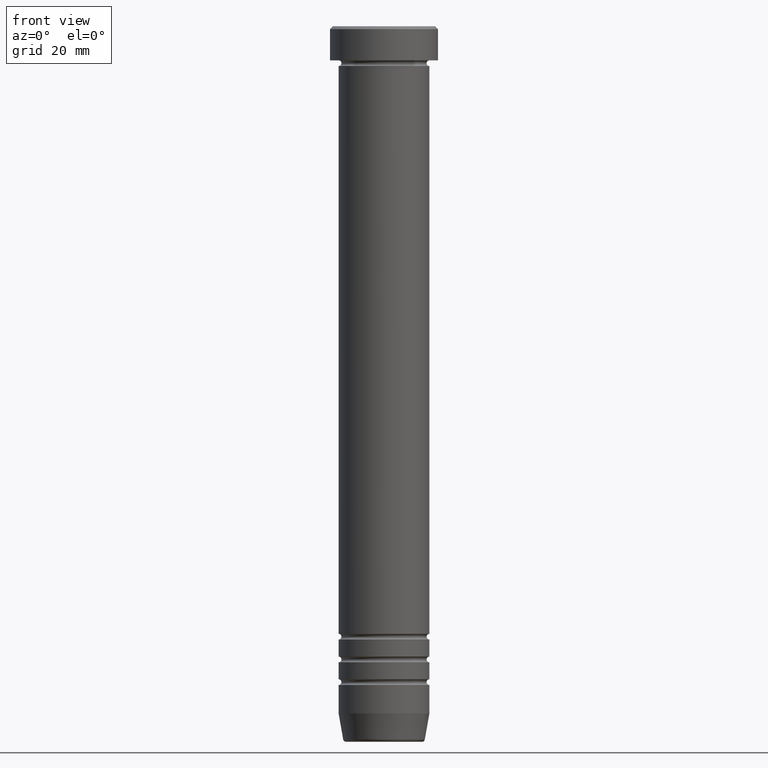
[diagram: clean part render]
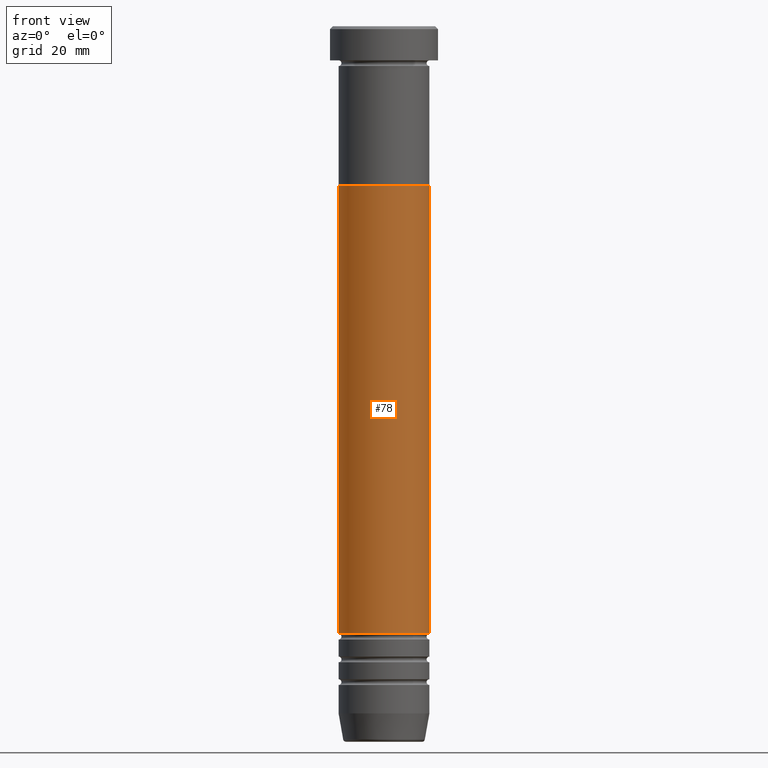
[diagram: same view with one face highlighted and labeled with its STEP entity id]
A machine part, front view. The second image highlights one B-rep face of the part: STEP entity #78.
In plain terms, the highlighted cylindrical surface (partial cylindrical patch) has radius 8 mm, axis along (-0, -0, 1).
Its self-contained STEP definition (entity closure, byte-faithful):
#9 = CARTESIAN_POINT ( 'NONE',  ( 7.999999999999991118, 0.000000000000000000, -107.0000000000000142 ) ) ;
#15 = CARTESIAN_POINT ( 'NONE',  ( 0.000000000000000000, 0.000000000000000000, -28.00000000000000000 ) ) ;
#64 = EDGE_CURVE ( 'NONE', #579, #902, #163, .T. ) ;
#78 = ADVANCED_FACE ( 'NONE', ( #438 ), #996, .T. ) ;
#107 = DIRECTION ( 'NONE',  ( -0.000000000000000000, -0.000000000000000000, 1.000000000000000000 ) ) ;
#112 = DIRECTION ( 'NONE',  ( 1.000000000000000000, 0.000000000000000000, 0.000000000000000000 ) ) ;
#118 = DIRECTION ( 'NONE',  ( 1.000000000000000000, 0.000000000000000000, 0.000000000000000000 ) ) ;
#125 = EDGE_CURVE ( 'NONE', #510, #579, #925, .T. ) ;
#146 = VERTEX_POINT ( 'NONE', #945 ) ;
#163 = LINE ( 'NONE', #506, #467 ) ;
#192 = ORIENTED_EDGE ( 'NONE', *, *, #125, .T. ) ;
#198 = CARTESIAN_POINT ( 'NONE',  ( 0.000000000000000000, 0.000000000000000000, 0.000000000000000000 ) ) ;
#237 = DIRECTION ( 'NONE',  ( 1.000000000000000000, 0.000000000000000000, 0.000000000000000000 ) ) ;
#290 = CARTESIAN_POINT ( 'NONE',  ( 8.000000000000000000, 0.000000000000000000, -28.00000000000000000 ) ) ;
#330 = EDGE_CURVE ( 'NONE', #510, #146, #977, .T. ) ;
#406 = DIRECTION ( 'NONE',  ( -0.000000000000000000, -0.000000000000000000, 1.000000000000000000 ) ) ;
#431 = DIRECTION ( 'NONE',  ( -0.000000000000000000, -0.000000000000000000, 1.000000000000000000 ) ) ;
#435 = AXIS2_PLACEMENT_3D ( 'NONE', #15, #107, #112 ) ;
#438 = FACE_OUTER_BOUND ( 'NONE', #875, .T. ) ;
#467 = VECTOR ( 'NONE', #431, 1000.000000000000000 ) ;
#506 = CARTESIAN_POINT ( 'NONE',  ( 7.999999999999996447, 0.000000000000000000, 0.000000000000000000 ) ) ;
#510 = VERTEX_POINT ( 'NONE', #1015 ) ;
#546 = DIRECTION ( 'NONE',  ( -0.000000000000000000, -0.000000000000000000, 1.000000000000000000 ) ) ;
#579 = VERTEX_POINT ( 'NONE', #9 ) ;
#594 = CARTESIAN_POINT ( 'NONE',  ( -7.999999999999996447, 9.797174393178821713E-16, 0.000000000000000000 ) ) ;
#603 = AXIS2_PLACEMENT_3D ( 'NONE', #198, #546, #118 ) ;
#771 = ORIENTED_EDGE ( 'NONE', *, *, #871, .F. ) ;
#838 = VECTOR ( 'NONE', #1050, 1000.000000000000000 ) ;
#851 = CARTESIAN_POINT ( 'NONE',  ( 0.000000000000000000, 0.000000000000000000, -107.0000000000000142 ) ) ;
#871 = EDGE_CURVE ( 'NONE', #146, #902, #1123, .T. ) ;
#875 = EDGE_LOOP ( 'NONE', ( #1143, #192, #1117, #771 ) ) ;
#902 = VERTEX_POINT ( 'NONE', #290 ) ;
#925 = CIRCLE ( 'NONE', #1142, 7.999999999999991118 ) ;
#945 = CARTESIAN_POINT ( 'NONE',  ( -8.000000000000000000, 9.797174393178825657E-16, -28.00000000000000000 ) ) ;
#977 = LINE ( 'NONE', #594, #838 ) ;
#996 = CYLINDRICAL_SURFACE ( 'NONE', #603, 7.999999999999996447 ) ;
#1015 = CARTESIAN_POINT ( 'NONE',  ( -7.999999999999991118, 9.797174393178819741E-16, -107.0000000000000142 ) ) ;
#1050 = DIRECTION ( 'NONE',  ( -0.000000000000000000, -0.000000000000000000, 1.000000000000000000 ) ) ;
#1117 = ORIENTED_EDGE ( 'NONE', *, *, #64, .T. ) ;
#1123 = CIRCLE ( 'NONE', #435, 8.000000000000000000 ) ;
#1142 = AXIS2_PLACEMENT_3D ( 'NONE', #851, #406, #237 ) ;
#1143 = ORIENTED_EDGE ( 'NONE', *, *, #330, .F. ) ;